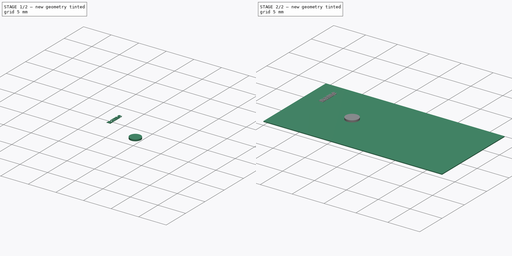
[diagram: build sequence overview — one tinted view per stage of 2, left to right]
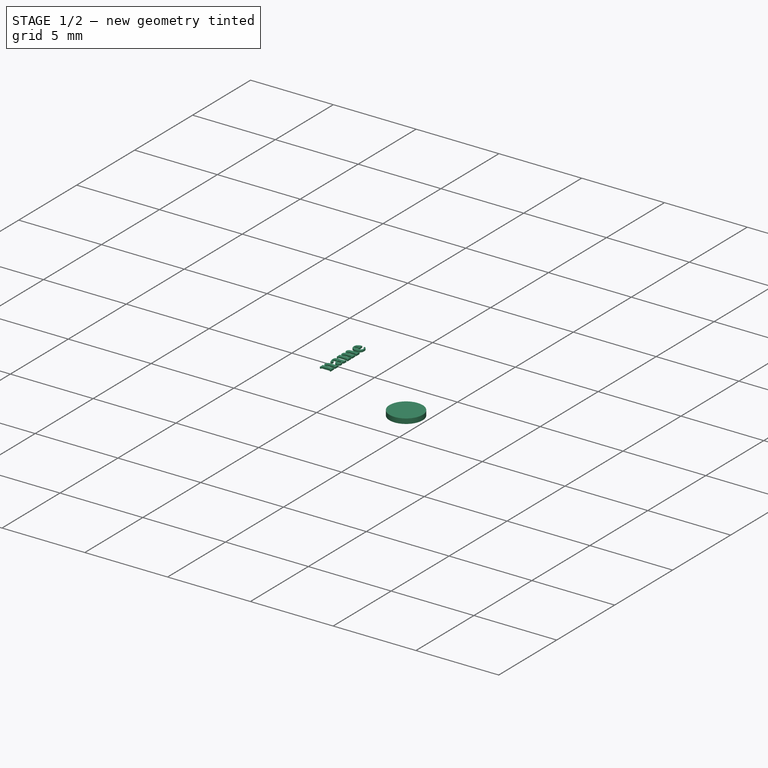
[diagram: stage 1 of 2 — iso view after this stage's code; geometry added in this stage tinted green]
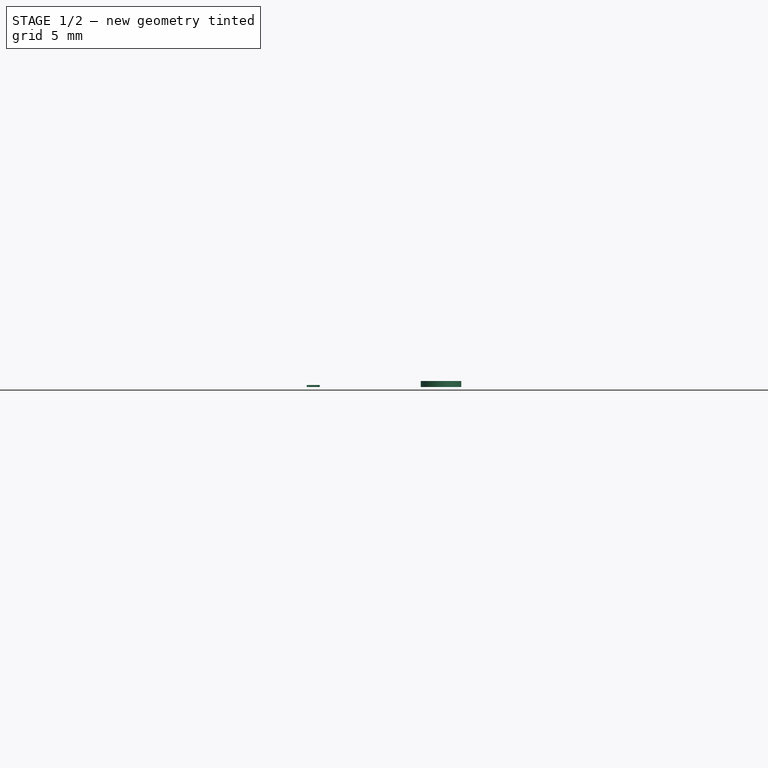
[diagram: stage 1 of 2 — front view after this stage's code; geometry added in this stage tinted green]
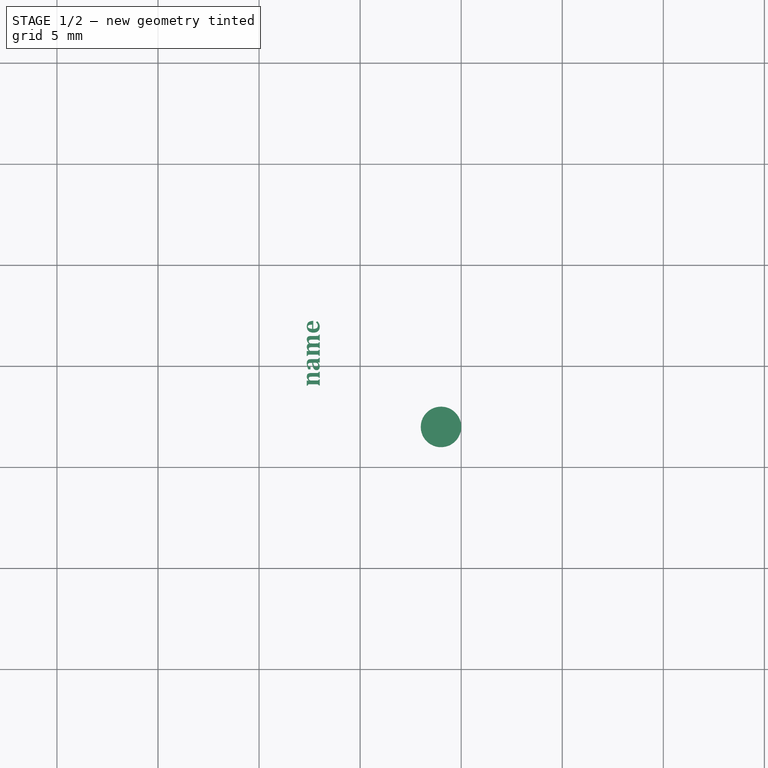
[diagram: stage 1 of 2 — top view after this stage's code; geometry added in this stage tinted green]
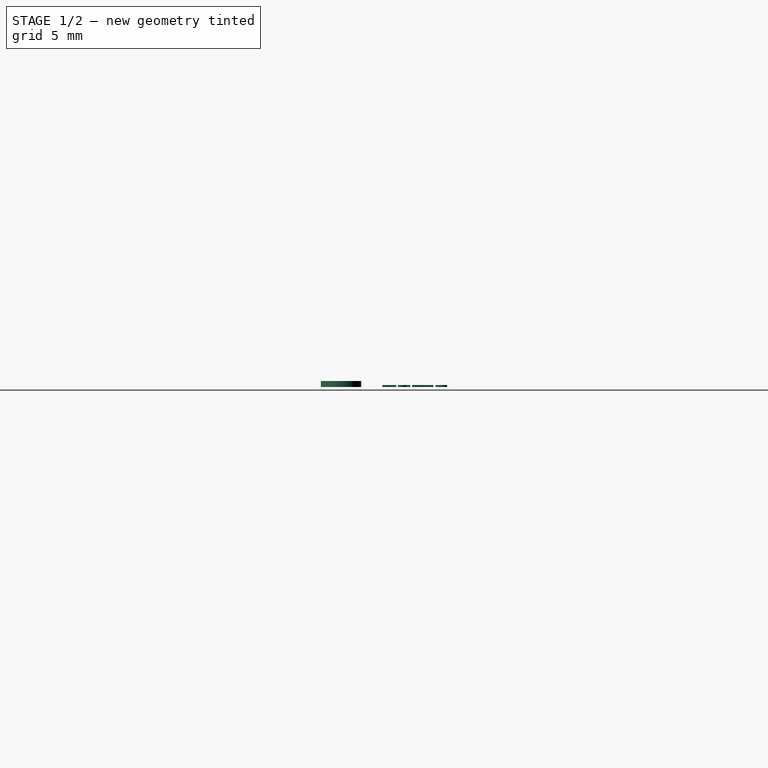
[diagram: stage 1 of 2 — right view after this stage's code; geometry added in this stage tinted green]
FCSTD DOCUMENT  (FreeCAD 0.16R6706 (Git))
Label: Maskless_Small_NoWalls_FreeCAD_EmptyTemplate_v1
License: All rights reserved
LicenseURL: http://en.wikipedia.org/wiki/All_rights_reserved
objects: Part::Box×1, Sketcher::SketchObject×1, PartDesign::Pad×1, Part::Part2DObjectPython×1, Part::Extrusion×1, Part::MultiFuse×1
note: 7 computed .brp shape members not serialized (recipe doc carries the construction recipe); baked Part::Feature solids carry a one-line shape summary decoded from their .brp

FEATURE [Sketcher::SketchObject] Sketch008  label="Sketch - customize in Part Design"
  Placement = pos=(0,0,0.125) rot=(0,0,1;0rad)
  sketch-geometry (1):
    g0: Circle CenterX=9 CenterY=7 CenterZ=0 NormalX=0 NormalY=0 NormalZ=1 Radius=1
  constraints (3):
    c: Radius(g0) = 1
    c: DistanceY(g0) = 7
    c: DistanceX(g0) = 9
FEATURE [PartDesign::Pad] Pad008  label="Padded Design"
  Length = 0.3
  Length2 = 100
  Placement = pos=(0,0,0.125) rot=(0,0,1;0rad)
  Sketch = -> Sketch008
  Type = 0
FEATURE [Part::Part2DObjectPython] ShapeString  # Draft 2D object (typed FeaturePython)
  FontFile = <userpath>/ownCloud/3D Print Files/Standard_Prints/Eiffel_Tower/SLA Optimized (Form 1+)/CAMBRIAB.TTF
  Placement = pos=(3,9,0.125) rot=(0,0,1;1.5708rad)
  Size = 1
  String = name
  Tracking = 0
FEATURE [Part::Extrusion] Extrude001  label="Sample Name"
  Base = -> ShapeString
  Dir = (0,0,0.1)
  Solid = false
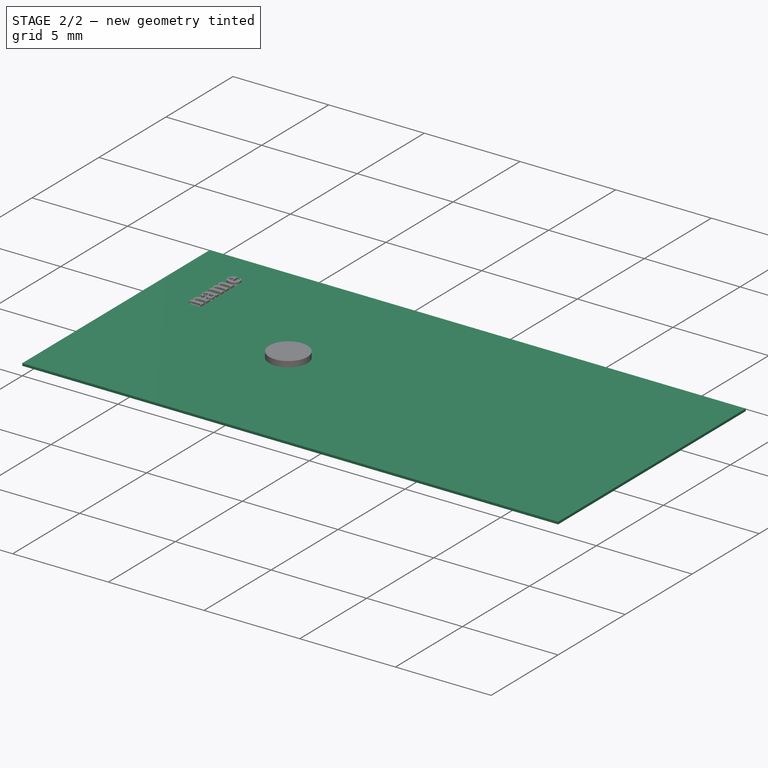
[diagram: stage 2 of 2 — iso view after this stage's code; geometry added in this stage tinted green]
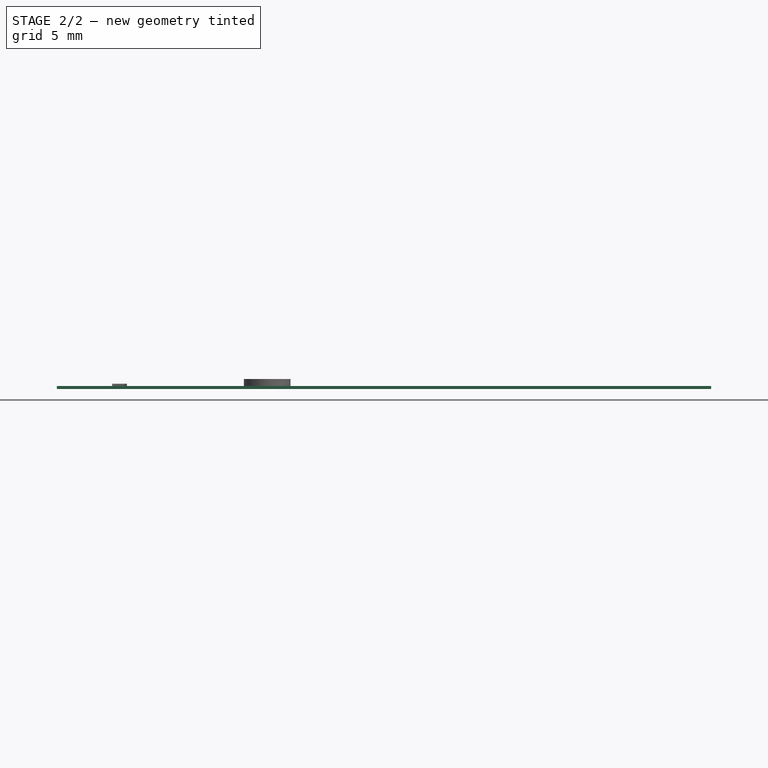
[diagram: stage 2 of 2 — front view after this stage's code; geometry added in this stage tinted green]
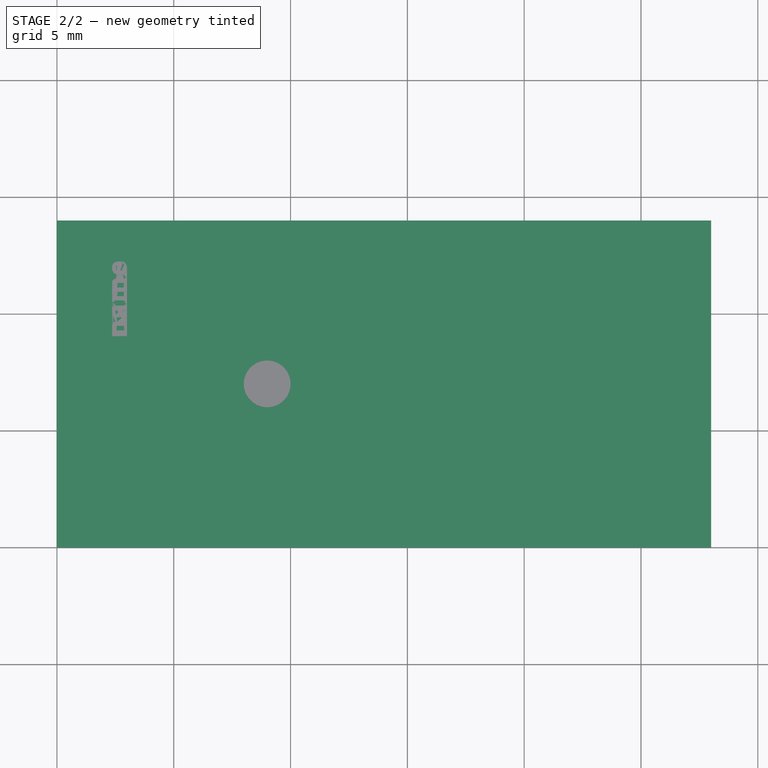
[diagram: stage 2 of 2 — top view after this stage's code; geometry added in this stage tinted green]
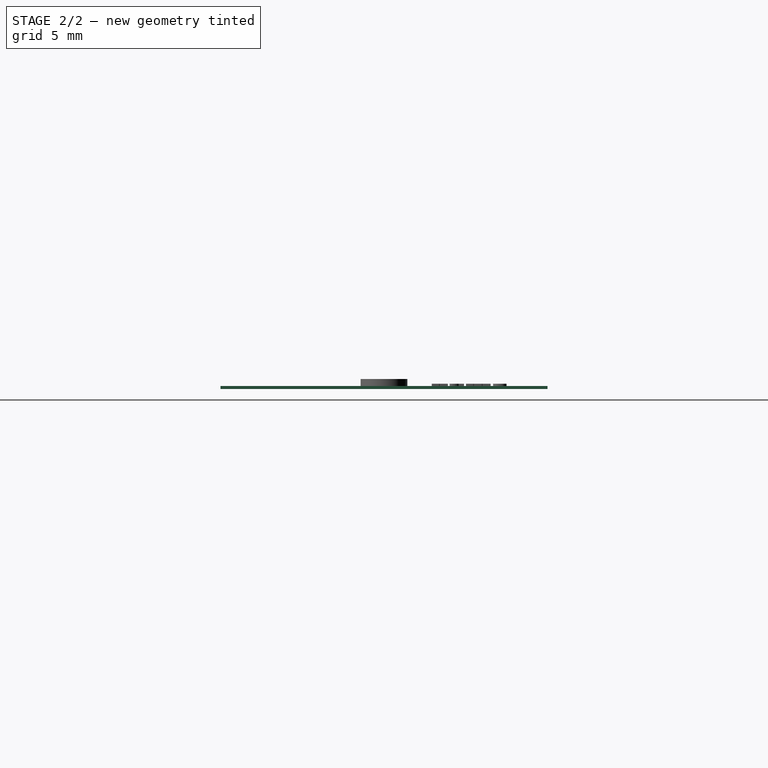
[diagram: stage 2 of 2 — right view after this stage's code; geometry added in this stage tinted green]
FEATURE [Part::Box] Box  label="Base - do not edit"
  Height = 0.125
  Length = 28
  Width = 14
FEATURE [Part::MultiFuse] Fusion  label="Fused part for export"
  Shapes = -> [Extrude001,Pad008,Box]
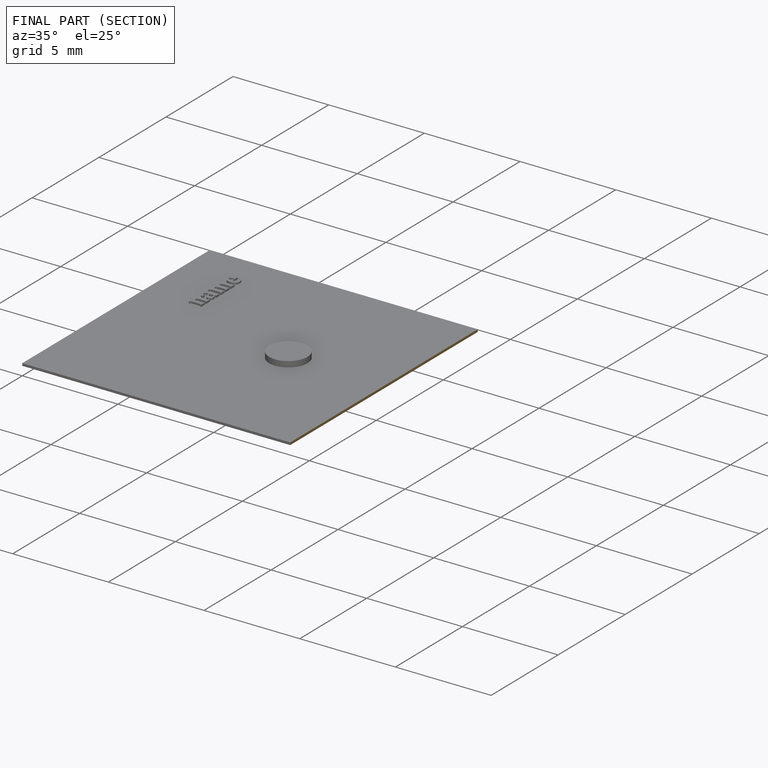
[diagram: finished part — half-section view (interior)]
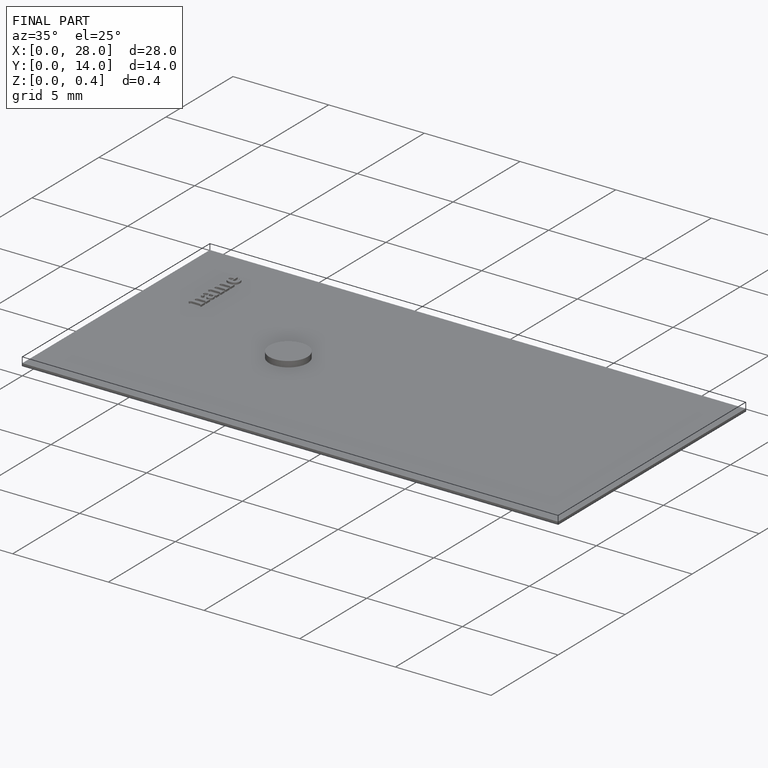
[diagram: finished part — iso view with bounding-box wireframe]
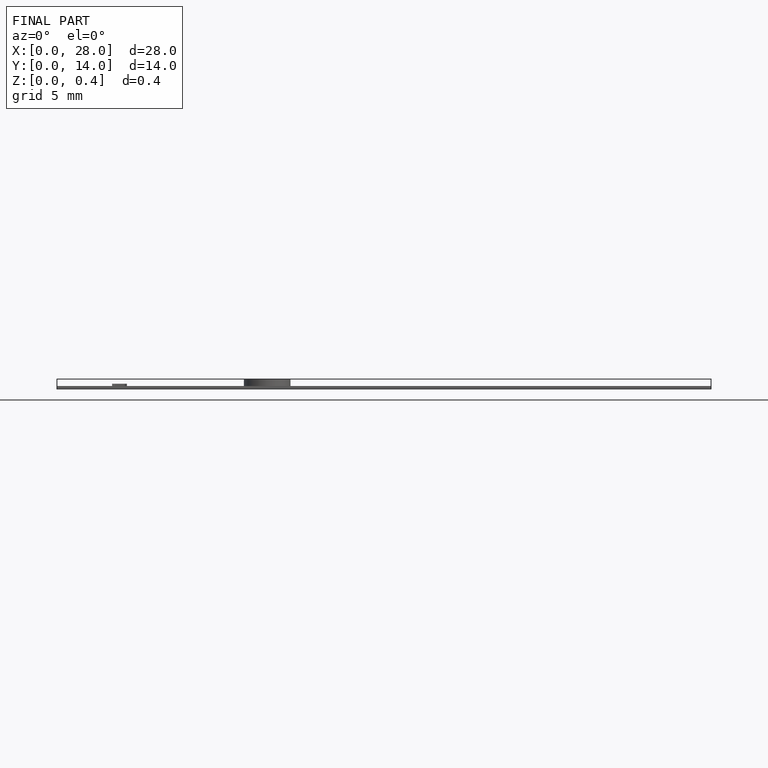
[diagram: finished part — front view with bounding-box wireframe]
